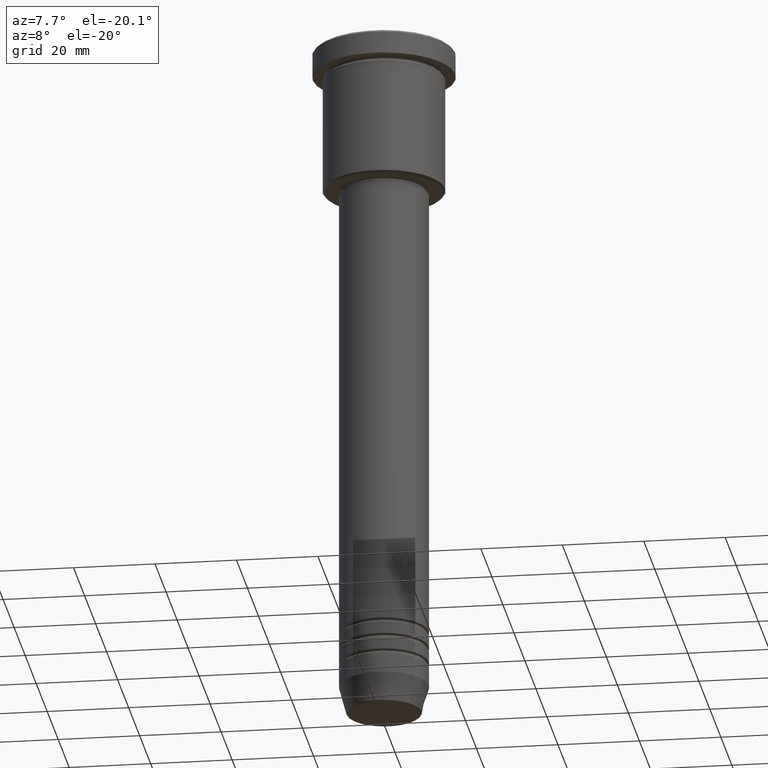
[diagram: clean part render]
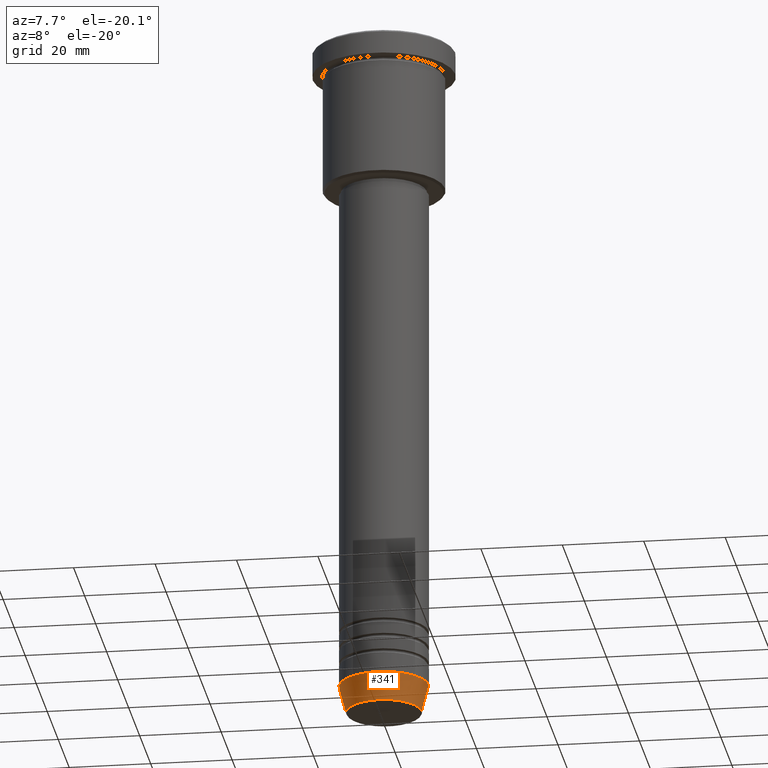
[diagram: same view with one face highlighted and labeled with its STEP entity id]
A machine part, auxiliary view. The second image highlights one B-rep face of the part: STEP entity #341.
In plain terms, the highlighted conical surface has half-angle 15 deg.
Its self-contained STEP definition (entity closure, byte-faithful):
#11 = CARTESIAN_POINT ( 'NONE',  ( 0.000000000000000000, 0.000000000000000000, -170.6294095225512990 ) ) ;
#21 = CONICAL_SURFACE ( 'NONE', #1090, 11.00000000000000000, 0.2617993877991500740 ) ;
#42 = VECTOR ( 'NONE', #987, 1000.000000000000000 ) ;
#49 = CARTESIAN_POINT ( 'NONE',  ( 11.00000000000000000, 0.000000000000000000, -164.0000000000000284 ) ) ;
#59 = AXIS2_PLACEMENT_3D ( 'NONE', #11, #849, #845 ) ;
#153 = DIRECTION ( 'NONE',  ( -0.2588190451025213501, 3.169619151431772337E-17, 0.9659258262890680902 ) ) ;
#168 = CARTESIAN_POINT ( 'NONE',  ( 11.00000000000000000, 0.000000000000000000, -164.0000000000000284 ) ) ;
#188 = EDGE_CURVE ( 'NONE', #1094, #1122, #570, .T. ) ;
#198 = ORIENTED_EDGE ( 'NONE', *, *, #328, .F. ) ;
#252 = LINE ( 'NONE', #485, #900 ) ;
#322 = FACE_OUTER_BOUND ( 'NONE', #606, .T. ) ;
#328 = EDGE_CURVE ( 'NONE', #1094, #1099, #252, .T. ) ;
#341 = ADVANCED_FACE ( 'NONE', ( #322 ), #21, .T. ) ;
#361 = EDGE_CURVE ( 'NONE', #1099, #890, #549, .T. ) ;
#426 = DIRECTION ( 'NONE',  ( 1.000000000000000000, 0.000000000000000000, 0.000000000000000000 ) ) ;
#454 = LINE ( 'NONE', #168, #42 ) ;
#458 = AXIS2_PLACEMENT_3D ( 'NONE', #1157, #954, #855 ) ;
#479 = EDGE_CURVE ( 'NONE', #1122, #890, #454, .T. ) ;
#485 = CARTESIAN_POINT ( 'NONE',  ( -11.00000000000000000, 1.347111479062088405E-15, -164.0000000000000284 ) ) ;
#499 = DIRECTION ( 'NONE',  ( -0.000000000000000000, -0.000000000000000000, 1.000000000000000000 ) ) ;
#543 = CARTESIAN_POINT ( 'NONE',  ( -9.223655072137189492, 1.238341722557647202E-15, -170.6294095225512990 ) ) ;
#549 = CIRCLE ( 'NONE', #458, 11.00000000000000000 ) ;
#570 = CIRCLE ( 'NONE', #59, 9.223655072137189492 ) ;
#606 = EDGE_LOOP ( 'NONE', ( #198, #910, #1143, #687 ) ) ;
#687 = ORIENTED_EDGE ( 'NONE', *, *, #361, .F. ) ;
#730 = CARTESIAN_POINT ( 'NONE',  ( 9.223655072137189492, 0.000000000000000000, -170.6294095225512990 ) ) ;
#845 = DIRECTION ( 'NONE',  ( 1.000000000000000000, 0.000000000000000000, 0.000000000000000000 ) ) ;
#849 = DIRECTION ( 'NONE',  ( -0.000000000000000000, -0.000000000000000000, 1.000000000000000000 ) ) ;
#855 = DIRECTION ( 'NONE',  ( 1.000000000000000000, 0.000000000000000000, 0.000000000000000000 ) ) ;
#890 = VERTEX_POINT ( 'NONE', #49 ) ;
#900 = VECTOR ( 'NONE', #153, 1000.000000000000000 ) ;
#910 = ORIENTED_EDGE ( 'NONE', *, *, #188, .T. ) ;
#941 = CARTESIAN_POINT ( 'NONE',  ( 0.000000000000000000, 0.000000000000000000, -164.0000000000000284 ) ) ;
#954 = DIRECTION ( 'NONE',  ( -0.000000000000000000, -0.000000000000000000, 1.000000000000000000 ) ) ;
#987 = DIRECTION ( 'NONE',  ( 0.2588190451025213501, 0.000000000000000000, 0.9659258262890680902 ) ) ;
#1090 = AXIS2_PLACEMENT_3D ( 'NONE', #941, #499, #426 ) ;
#1093 = CARTESIAN_POINT ( 'NONE',  ( -11.00000000000000000, 1.347111479062088405E-15, -164.0000000000000284 ) ) ;
#1094 = VERTEX_POINT ( 'NONE', #543 ) ;
#1099 = VERTEX_POINT ( 'NONE', #1093 ) ;
#1122 = VERTEX_POINT ( 'NONE', #730 ) ;
#1143 = ORIENTED_EDGE ( 'NONE', *, *, #479, .T. ) ;
#1157 = CARTESIAN_POINT ( 'NONE',  ( 0.000000000000000000, 0.000000000000000000, -164.0000000000000284 ) ) ;